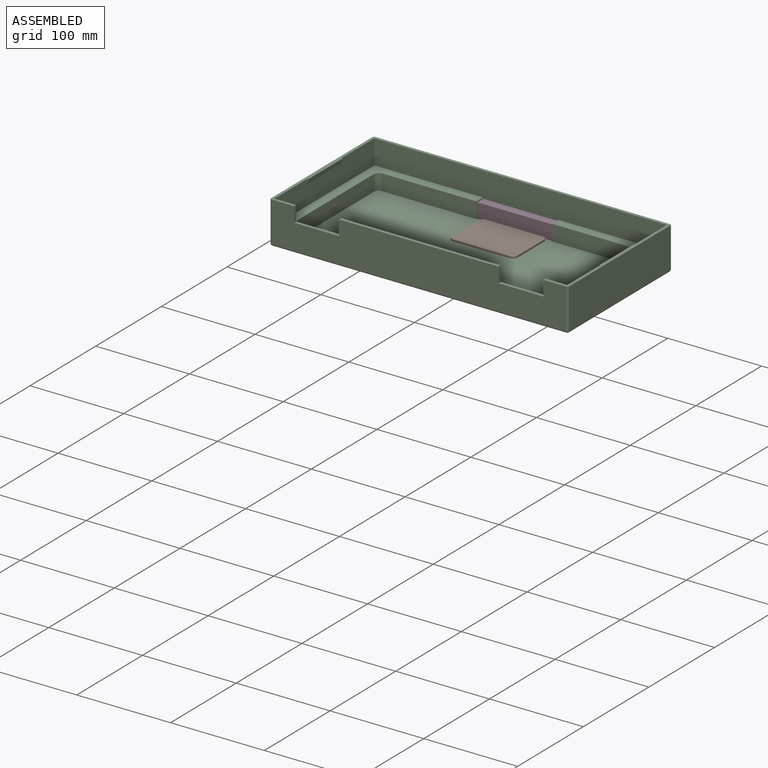
[diagram: assembled view]
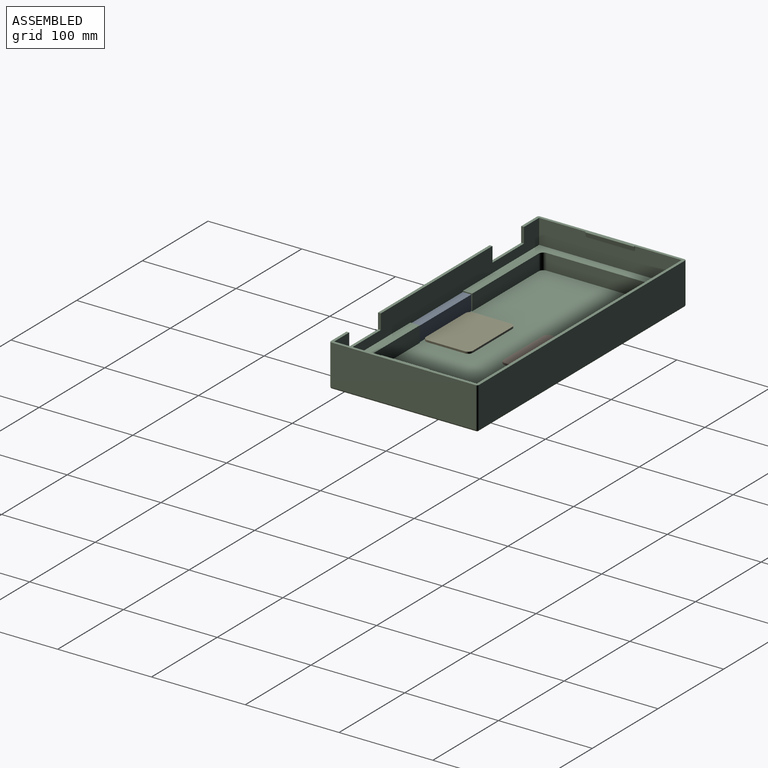
[diagram: assembled view, second angle]
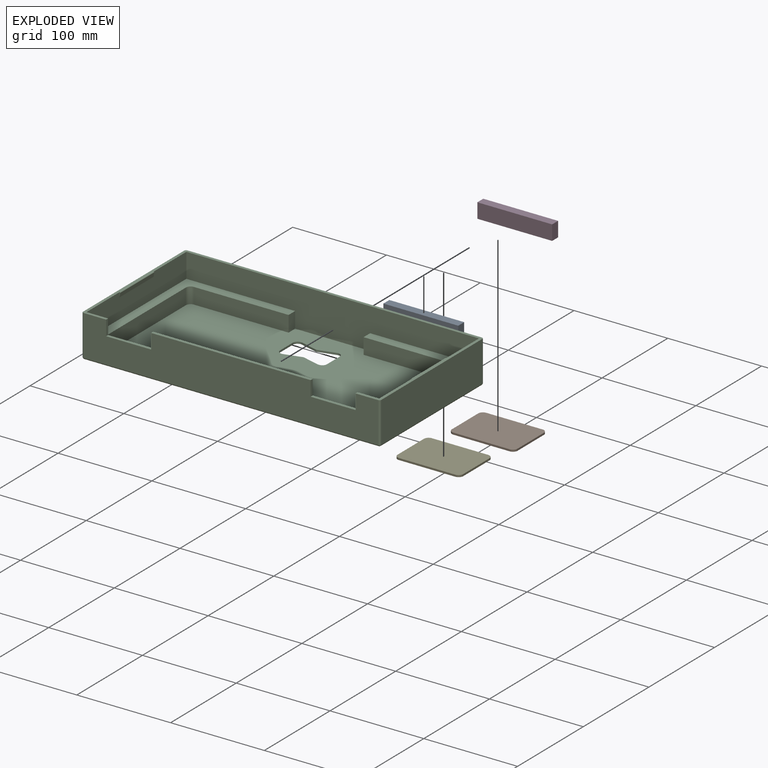
[diagram: exploded view]
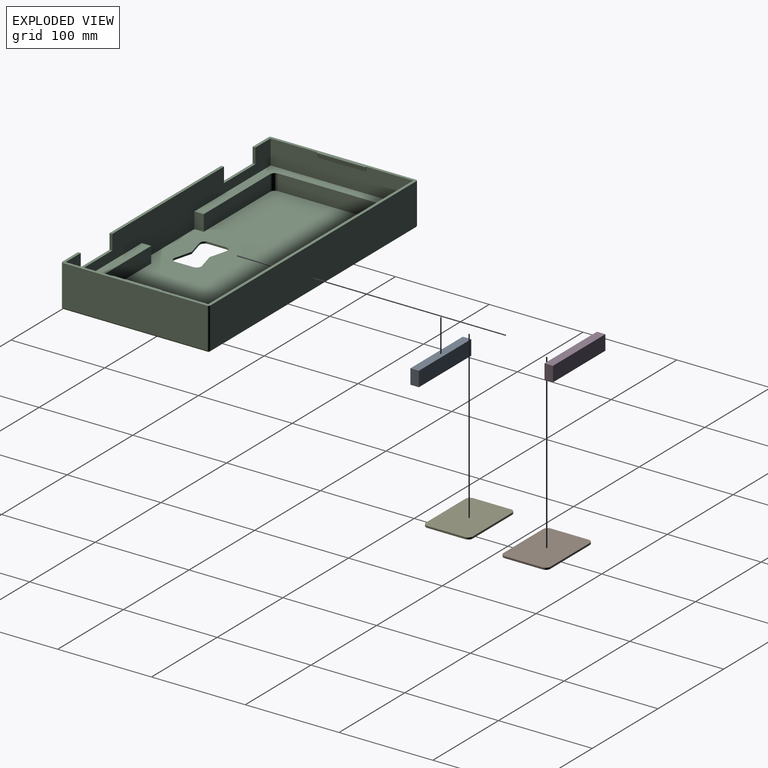
[diagram: exploded view, second angle]
ASSEMBLY  parts=5 mates=9
PART A: 6 faces, bbox 79.8x9x15.9 mm
  f0: plane 79.8x15.9mm, normal (0,1,0), area 1268.8mm2, adj f1,f3,f4,f5
  f1: plane 15.9x9mm, normal (-1,0,0), area 143.1mm2, adj f0,f2,f4,f5
  f2: plane 79.8x15.9mm, normal (0,-1,0), area 1268.8mm2, adj f1,f3,f4,f5
  f3: plane 15.9x9mm, normal (1,0,0), area 143.1mm2, adj f0,f2,f4,f5
  f4: plane 79.8x9mm, normal (0,0,1), area 718.2mm2, adj f0,f1,f2,f3
  f5: plane 79.8x9mm, normal (0,0,-1), area 718.2mm2, adj f0,f1,f2,f3
PART B: 21 faces, bbox 70x50x4 mm
  f0: plane 60x2mm, normal (0,1,0), area 120mm2, adj f4,f5,f6,f9
  f1: plane 40x2mm, normal (-1,0,0), area 80mm2, adj f4,f5,f6,f7
  f2: plane 60x2mm, normal (0,-1,0), area 120mm2, adj f4,f5,f7,f8
  f3: plane 40x2mm, normal (1,0,0), area 80mm2, adj f4,f5,f8,f9
  f4: plane 70x50mm, normal (0,0,1), area 2265.1mm2, adj f0,f1,f2,f3,f6,f7,f8,f9
  f5: plane 70x50mm, normal (0,0,-1), area 3478.5mm2, adj f0,f1,f2,f3,f6,f7,f8,f9
  f6: cylinder r=5mm len=5mm, axis (0,0,1), area 15.7mm2, adj f0,f1,f4,f5
  f7: cylinder r=5mm len=5mm, axis (0,0,-1), area 15.7mm2, adj f1,f2,f4,f5
  f8: cylinder r=5mm len=5mm, axis (0,0,1), area 15.7mm2, adj f2,f3,f4,f5
  f9: cylinder r=5mm len=5mm, axis (0,0,-1), area 15.7mm2, adj f0,f3,f4,f5
  f10: plane 18.51x4.96mm, normal (0.26,0.97,0), area 38.3mm2, adj f4,f11,f19,f20
  f11: cylinder r=5mm len=6.29mm, axis (0,0,-1), area 18.3mm2, adj f4,f10,f12,f20
  f12: plane 18.86x2mm, normal (-1,0,0), area 37.7mm2, adj f4,f11,f13,f20
  f13: cylinder r=5mm len=6.29mm, axis (0,0,-1), area 18.3mm2, adj f4,f12,f14,f20
  f14: plane 18.51x4.96mm, normal (0.26,-0.97,0), area 38.3mm2, adj f4,f13,f15,f20
  f15: plane 18.51x4.96mm, normal (-0.26,-0.97,0), area 38.3mm2, adj f4,f14,f16,f20
  f16: cylinder r=5mm len=6.29mm, axis (0,0,-1), area 18.3mm2, adj f4,f15,f17,f20
  f17: plane 18.86x2mm, normal (1,0,0), area 37.7mm2, adj f4,f16,f18,f20
  f18: cylinder r=5mm len=6.29mm, axis (0,0,-1), area 18.3mm2, adj f4,f17,f19,f20
  f19: plane 18.51x4.96mm, normal (-0.26,0.97,0), area 38.3mm2, adj f4,f10,f18,f20
  f20: plane 49.6x28.86mm, normal (0,0,1), area 1213.5mm2, adj f10,f11,f12,f13,f14,f15,f16,f17
PART C: 76 faces, bbox 318x158x45.1 mm
  f0: plane 314x154mm, normal (0,0,-1), area 45863.5mm2, adj f18,f19,f23,f24,f56,f57,f58,f59
  f1: plane 292x152mm, normal (0,0,1), area 37630.1mm2, adj f4,f5,f7,f11,f27,f28,f29,f30
  f2: plane 152x26mm, normal (-1,0,0), area 3692mm2, adj f6,f7,f9,f11,f52,f54,f55
  f3: plane 152x26mm, normal (1,0,0), area 3692mm2, adj f7,f9,f11,f35,f47,f49,f50
  f4: plane 101x17mm, normal (0,1,0), area 1717mm2, adj f1,f6,f29,f45
  f5: plane 101x17mm, normal (0,-1,0), area 1717mm2, adj f1,f6,f27,f43
  f6: plane 152x116mm, normal (0,0,1), area 3650.7mm2, adj f2,f4,f5,f7,f11,f27,f28,f29
  f7: plane 312x43mm, normal (0,1,0), area 7936mm2, adj f1,f2,f3,f6,f8,f9,f35,f36
  f8: plane 170x3mm, normal (0,0,1), area 510mm2, adj f7,f10,f37,f39
  f9: plane 318x158mm, normal (0,0,1), area 2018.6mm2, adj f2,f3,f7,f10,f11,f12,f13,f14
  f10: plane 314x43mm, normal (0,-1,0), area 11966mm2, adj f8,f9,f15,f19,f20,f36,f37,f38
  f11: plane 312x43mm, normal (0,-1,0), area 9472mm2, adj f1,f2,f3,f6,f9,f35,f42,f43
  f12: plane 154x43mm, normal (1,0,0), area 6622mm2, adj f9,f20,f24,f26
  f13: plane 314x43mm, normal (0,1,0), area 13502mm2, adj f9,f17,f23,f26
  f14: plane 154x43mm, normal (-1,0,0), area 6622mm2, adj f9,f15,f17,f18
  f15: cylinder r=2mm len=43mm, axis (0,0,-1), area 135.1mm2, adj f9,f10,f14,f16
  f16: sphere r=2mm, area 6.3mm2, adj f15,f18,f19
  f17: cylinder r=2mm len=43mm, axis (0,0,1), area 135.1mm2, adj f9,f13,f14,f21
  f18: cylinder r=2mm len=154mm, axis (0,-1,0), area 483.8mm2, adj f0,f14,f16,f21
  f19: cylinder r=2mm len=314mm, axis (1,0,0), area 986.5mm2, adj f0,f10,f16,f22
  f20: cylinder r=2mm len=43mm, axis (0,0,1), area 135.1mm2, adj f9,f10,f12,f22
  f21: sphere r=2mm, area 6.3mm2, adj f17,f18,f23
  f22: sphere r=2mm, area 6.3mm2, adj f19,f20,f24
  f23: cylinder r=2mm len=314mm, axis (-1,0,0), area 986.5mm2, adj f0,f13,f21,f25
  f24: cylinder r=2mm len=154mm, axis (0,1,0), area 483.8mm2, adj f0,f12,f22,f25
  f25: sphere r=2mm, area 6.3mm2, adj f23,f24,f26
  f26: cylinder r=2mm len=43mm, axis (0,0,-1), area 135.1mm2, adj f9,f12,f13,f25
  f27: cylinder r=5mm len=17mm, axis (0,0,-1), area 133.5mm2, adj f1,f5,f6,f28
  f28: plane 122x17mm, normal (-1,0,0), area 2074mm2, adj f1,f6,f27,f29
  f29: cylinder r=5mm len=17mm, axis (0,0,-1), area 133.5mm2, adj f1,f4,f6,f28
  f30: plane 101x17mm, normal (0,1,0), area 1717mm2, adj f1,f31,f35,f44
  f31: cylinder r=5mm len=17mm, axis (0,0,-1), area 133.5mm2, adj f1,f30,f32,f35
  f32: plane 122x17mm, normal (1,0,0), area 2074mm2, adj f1,f31,f33,f35
  f33: cylinder r=5mm len=17mm, axis (0,0,-1), area 133.5mm2, adj f1,f32,f34,f35
  f34: plane 101x17mm, normal (0,-1,0), area 1717mm2, adj f1,f33,f35,f42
  f35: plane 152x116mm, normal (0,0,1), area 3650.7mm2, adj f3,f7,f11,f30,f31,f32,f33,f34
  f36: plane 16x3mm, normal (-1,0,0), area 48mm2, adj f7,f9,f10,f38
  f37: plane 16x3mm, normal (1,0,0), area 48mm2, adj f7,f8,f10,f38
  f38: plane 48x3mm, normal (0,0,1), area 144mm2, adj f7,f10,f36,f37
  f39: plane 16x3mm, normal (-1,0,0), area 48mm2, adj f7,f8,f10,f41
  f40: plane 16x3mm, normal (1,0,0), area 48mm2, adj f7,f9,f10,f41
  f41: plane 48x3mm, normal (0,0,1), area 144mm2, adj f7,f10,f39,f40
  f42: plane 17x10mm, normal (1,0,0), area 170mm2, adj f1,f11,f34,f35
  f43: plane 17x10mm, normal (-1,0,0), area 170mm2, adj f1,f5,f6,f11
  f44: plane 17x10mm, normal (1,0,0), area 170mm2, adj f1,f7,f30,f35
  f45: plane 17x10mm, normal (-1,0,0), area 170mm2, adj f1,f4,f6,f7
  f46: plane 52x0.27mm, normal (-0.19,0,0.98), area 14.5mm2, adj f9,f48,f49,f50
  f47: plane 52x4.47mm, normal (0.98,0,-0.19), area 236.6mm2, adj f3,f48,f49,f50
  f48: cylinder r=0.5mm len=52mm, axis (0,1,0), area 50.8mm2, adj f46,f47,f49,f50
  f49: plane 5.06x0.87mm, normal (0,-1,0), area 2.4mm2, adj f3,f46,f47,f48
  f50: plane 5.06x0.87mm, normal (0,1,0), area 2.4mm2, adj f3,f46,f47,f48
  f51: cylinder r=0.5mm len=52mm, axis (0,1,0), area 50.8mm2, adj f52,f53,f54,f55
  f52: plane 52x4.47mm, normal (-0.98,0,-0.19), area 236.6mm2, adj f2,f51,f54,f55
  f53: plane 52x0.27mm, normal (0.19,0,0.98), area 14.5mm2, adj f9,f51,f54,f55
  f54: plane 5.06x0.87mm, normal (0,-1,0), area 2.4mm2, adj f2,f51,f52,f53
  f55: plane 5.06x0.87mm, normal (0,1,0), area 2.4mm2, adj f2,f51,f52,f53
  f56: plane 19.37x2mm, normal (-1,0,0), area 38.7mm2, adj f0,f1,f57,f65
  f57: cylinder r=5mm len=6.29mm, axis (0,0,-1), area 18.3mm2, adj f0,f1,f56,f58
  f58: plane 18.71x5.01mm, normal (0.26,0.97,0), area 38.7mm2, adj f0,f1,f57,f59
  f59: plane 18.71x5.01mm, normal (-0.26,0.97,0), area 38.7mm2, adj f0,f1,f58,f60
  f60: cylinder r=5mm len=6.29mm, axis (0,0,-1), area 18.3mm2, adj f0,f1,f59,f61
  f61: plane 19.37x2mm, normal (1,0,0), area 38.7mm2, adj f0,f1,f60,f62
  f62: cylinder r=5mm len=6.29mm, axis (0,0,-1), area 18.3mm2, adj f0,f1,f61,f63
  f63: plane 18.71x5.01mm, normal (-0.26,-0.97,0), area 38.7mm2, adj f0,f1,f62,f64
  f64: plane 18.71x5.01mm, normal (0.26,-0.97,0), area 38.7mm2, adj f0,f1,f63,f65
  f65: cylinder r=5mm len=6.29mm, axis (0,0,-1), area 18.3mm2, adj f0,f1,f56,f64
  f66: cylinder r=5mm len=6.29mm, axis (0,0,-1), area 18.3mm2, adj f0,f1,f67,f75
  f67: plane 18.71x5.01mm, normal (0.26,0.97,0), area 38.7mm2, adj f0,f1,f66,f68
  f68: plane 18.71x5.01mm, normal (-0.26,0.97,0), area 38.7mm2, adj f0,f1,f67,f69
  f69: cylinder r=5mm len=6.29mm, axis (0,0,-1), area 18.3mm2, adj f0,f1,f68,f70
  f70: plane 19.37x2mm, normal (1,0,0), area 38.7mm2, adj f0,f1,f69,f71
  f71: cylinder r=5mm len=6.29mm, axis (0,0,-1), area 18.3mm2, adj f0,f1,f70,f72
  f72: plane 18.71x5.01mm, normal (-0.26,-0.97,0), area 38.7mm2, adj f0,f1,f71,f73
  f73: plane 18.71x5.01mm, normal (0.26,-0.97,0), area 38.7mm2, adj f0,f1,f72,f74
  f74: cylinder r=5mm len=6.29mm, axis (0,0,-1), area 18.3mm2, adj f0,f1,f73,f75
  f75: plane 19.37x2mm, normal (-1,0,0), area 38.7mm2, adj f0,f1,f66,f74
PART D: same geometry as A
PART E: same geometry as B
PLACE A t=(0,-71.5,2)mm
PLACE B rot(axis=(1,0,0),180deg) t=(0,41.36,4)mm
PLACE C at identity fixed
PLACE D rot(axis=(0,0,-1),180deg) t=(0,71.5,2)mm
PLACE E rot(axis=(1,0,0),180deg) t=(0,-41.36,4)mm
MATE slider C.f0 <-> B.f20  axis (0,0,-1) through (0,41.36,0)mm
MATE planar C.f1 <-> E.f4  axis (0,0,1) through (0,-41.36,2)mm
MATE planar D.f2 <-> C.f11  axis (0,1,0) through (0,76,9.95)mm
MATE planar A.f5 <-> C.f1  axis (0,0,-1) through (0,-71.5,2)mm
MATE parallel A.f3 <-> C.f45  axis (1,0,0) through (39.9,-71.5,9.95)mm
MATE planar D.f5 <-> C.f1  axis (0,0,-1) through (0,71.5,2)mm
MATE parallel D.f3 <-> C.f42  axis (-1,0,0) through (-39.9,71.5,9.95)mm
MATE planar B.f4 <-> C.f1  axis (0,0,-1) through (0,41.36,2)mm
MATE planar A.f2 <-> C.f7  axis (0,-1,0) through (0,-76,9.95)mm
